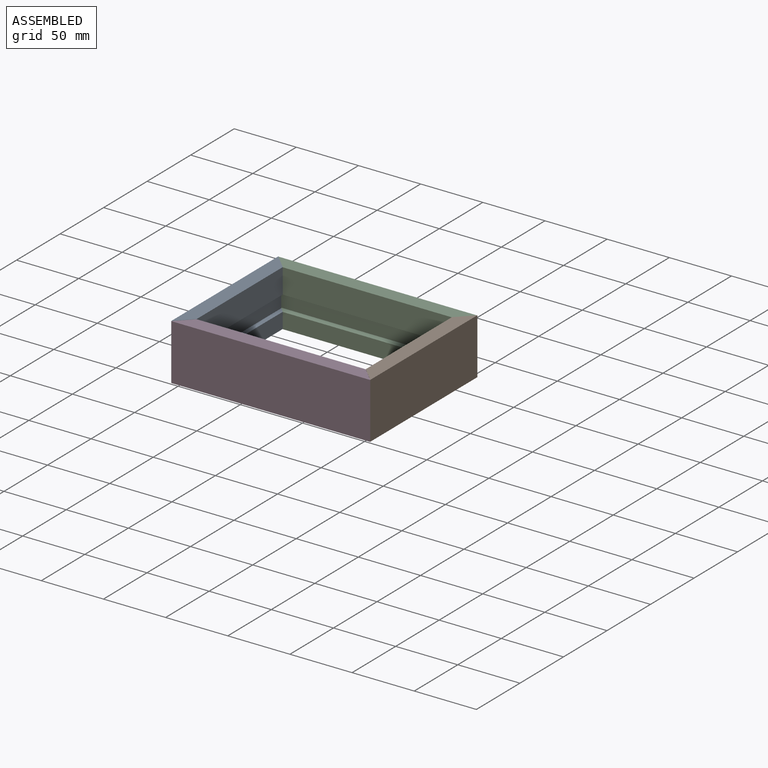
[diagram: assembled view]
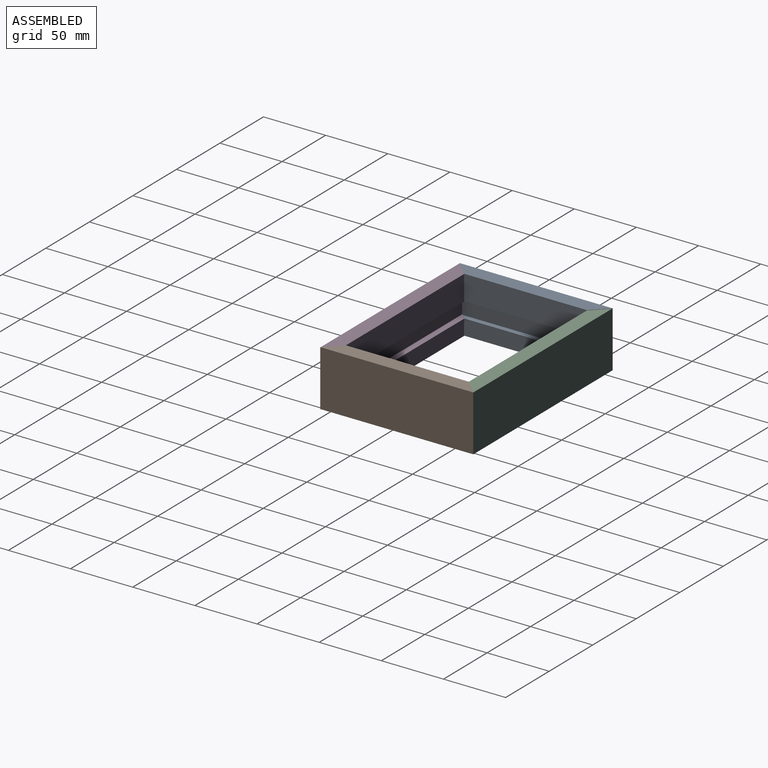
[diagram: assembled view, second angle]
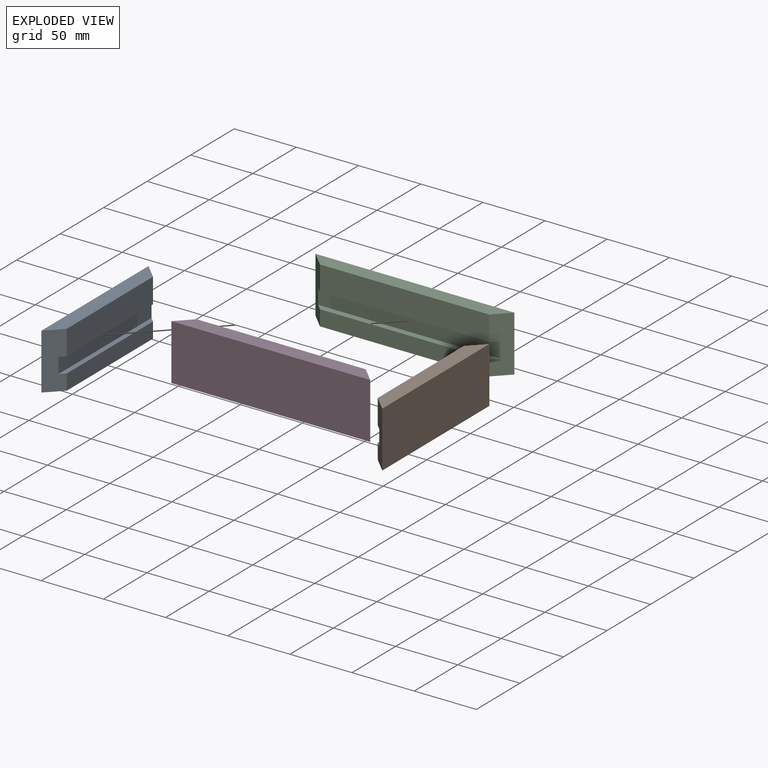
[diagram: exploded view]
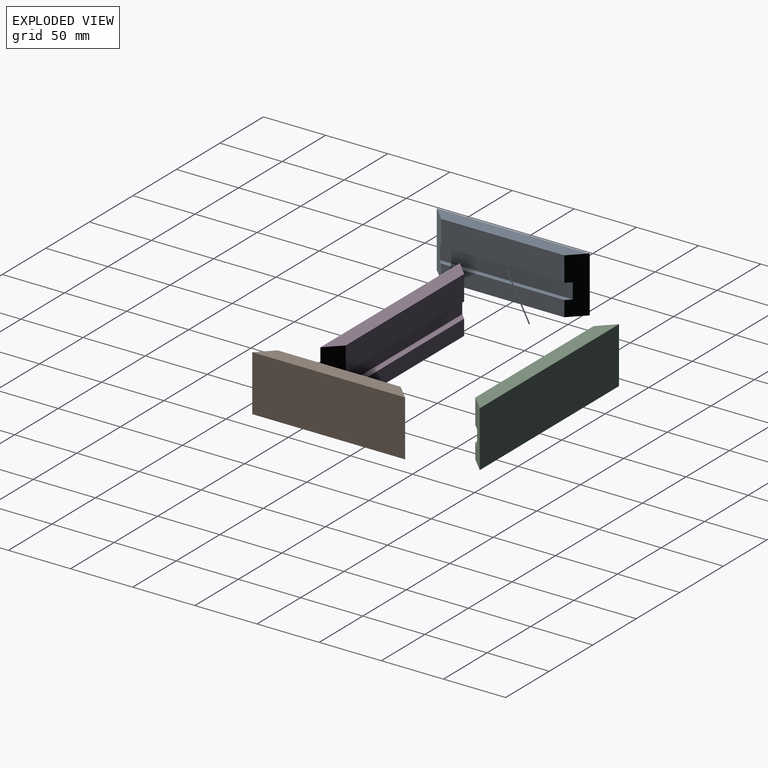
[diagram: exploded view, second angle]
ASSEMBLY  parts=4 mates=2
PART A: 10 faces, bbox 123x12x45 mm
  f0: plane 99x20mm, normal (0,-1,0), area 1980mm2, adj f1,f2,f6,f8
  f1: plane 45x12mm, normal (-0.71,-0.71,0), area 693mm2, adj f0,f3,f4,f5,f6,f7,f8,f9
  f2: plane 45x12mm, normal (0.71,-0.71,0), area 693mm2, adj f0,f3,f4,f5,f6,f7,f8,f9
  f3: plane 123x45mm, normal (0,1,0), area 5535mm2, adj f1,f2,f5,f6
  f4: plane 99x12.5mm, normal (0,-1,0), area 1237.5mm2, adj f1,f2,f5,f7
  f5: plane 123x12mm, normal (0,0,1), area 1332mm2, adj f1,f2,f3,f4
  f6: plane 123x12mm, normal (0,0,-1), area 1332mm2, adj f0,f1,f2,f3
  f7: plane 107x4mm, normal (0,0,-1), area 412mm2, adj f1,f2,f4,f9
  f8: plane 107x4mm, normal (0,0,1), area 412mm2, adj f0,f1,f2,f9
  f9: plane 107x12.5mm, normal (0,-1,0), area 1337.5mm2, adj f1,f2,f7,f8
PART B: same geometry as A
PART C: 10 faces, bbox 160x12x45 mm
  f0: plane 136x12.5mm, normal (0,-1,0), area 1700mm2, adj f1,f2,f6,f8
  f1: plane 45x12mm, normal (-0.71,-0.71,0), area 675.3mm2, adj f0,f3,f4,f5,f6,f7,f8,f9
  f2: plane 45x12mm, normal (0.71,-0.71,0), area 675.3mm2, adj f0,f3,f4,f5,f6,f7,f8,f9
  f3: plane 160x45mm, normal (0,1,0), area 7200mm2, adj f1,f2,f5,f6
  f4: plane 136x20mm, normal (0,-1,0), area 2720mm2, adj f1,f2,f5,f7
  f5: plane 160x12mm, normal (0,0,1), area 1776mm2, adj f1,f2,f3,f4
  f6: plane 160x12mm, normal (0,0,-1), area 1776mm2, adj f0,f1,f2,f3
  f7: plane 146x5mm, normal (0,0,-1), area 705mm2, adj f1,f2,f4,f9
  f8: plane 146x5mm, normal (0,0,1), area 705mm2, adj f0,f1,f2,f9
  f9: plane 146x12.5mm, normal (0,-1,0), area 1825mm2, adj f1,f2,f7,f8
PART D: same geometry as C
PLACE A rot(axis=(0.71,-0.71,0),180deg) t=(-52.75,119.01,-9.1)mm
PLACE B rot(axis=(-0.71,-0.71,0),180deg) t=(107.35,-3.99,-9.1)mm
PLACE C t=(-52.7,118.96,-54.21)mm
PLACE D rot(axis=(0,0,1),180deg) t=(107.3,-3.94,-54.21)mm
MATE fastened A.f1 <-> C.f1  axis (0.71,0.71,0) through (-47.16,113.42,-31.21)mm
MATE fastened B.f2 <-> C.f2  axis (-0.71,0.71,0) through (101.76,113.42,-31.21)mm
